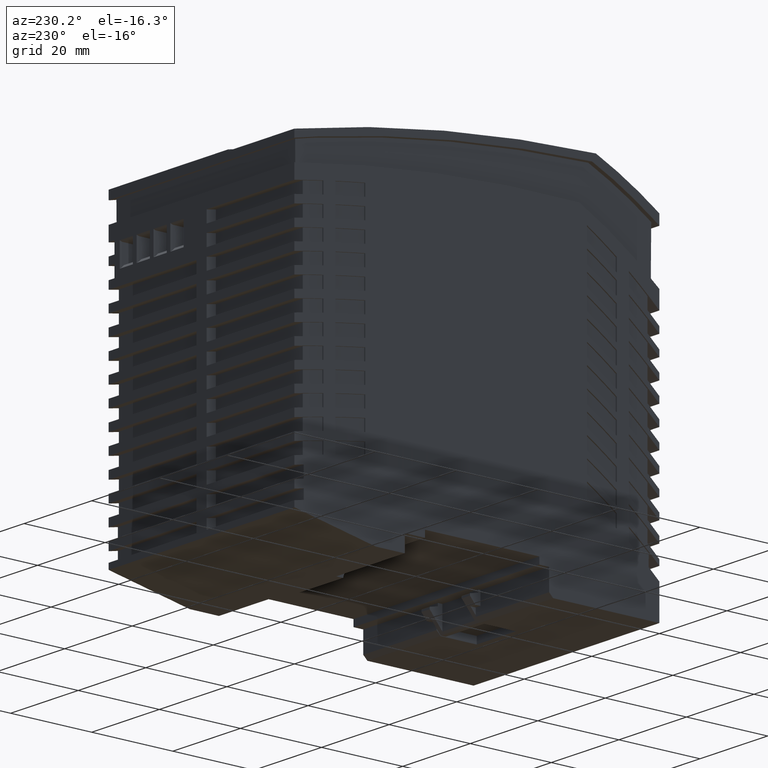
[diagram: clean part render]
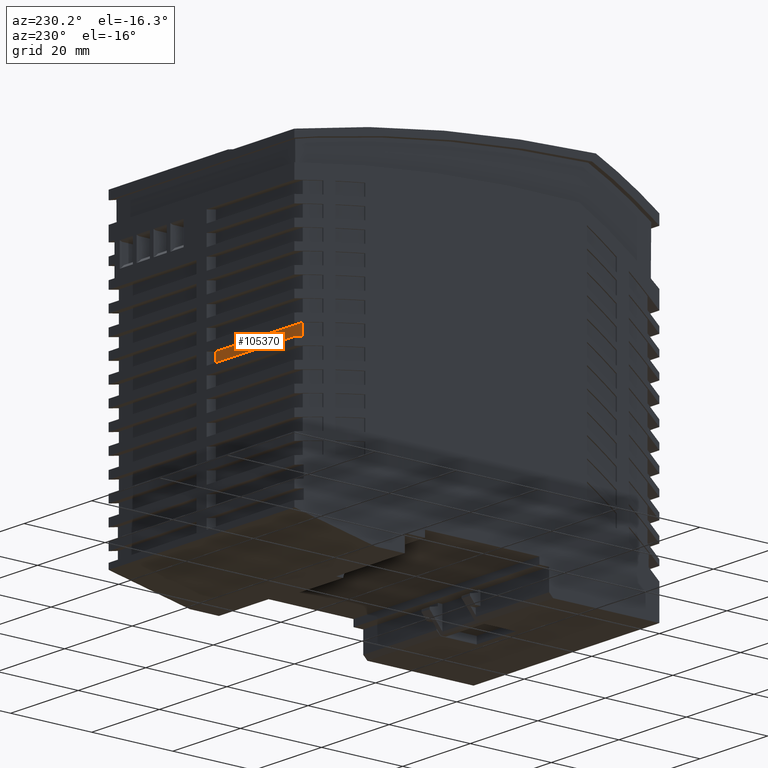
[diagram: same view with one face highlighted and labeled with its STEP entity id]
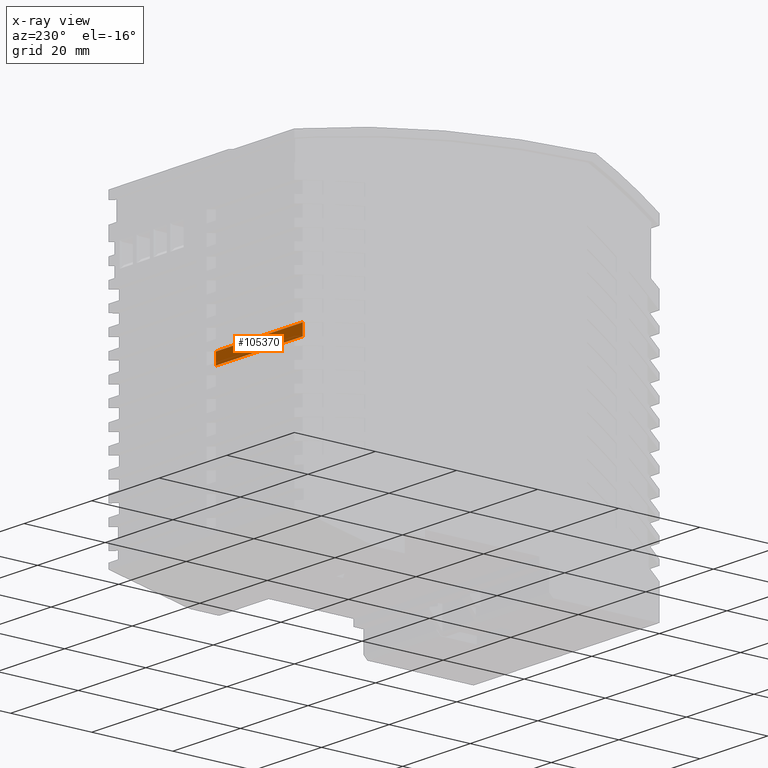
[diagram: x-ray of the same camera — body ghosted, the highlighted face saturated]
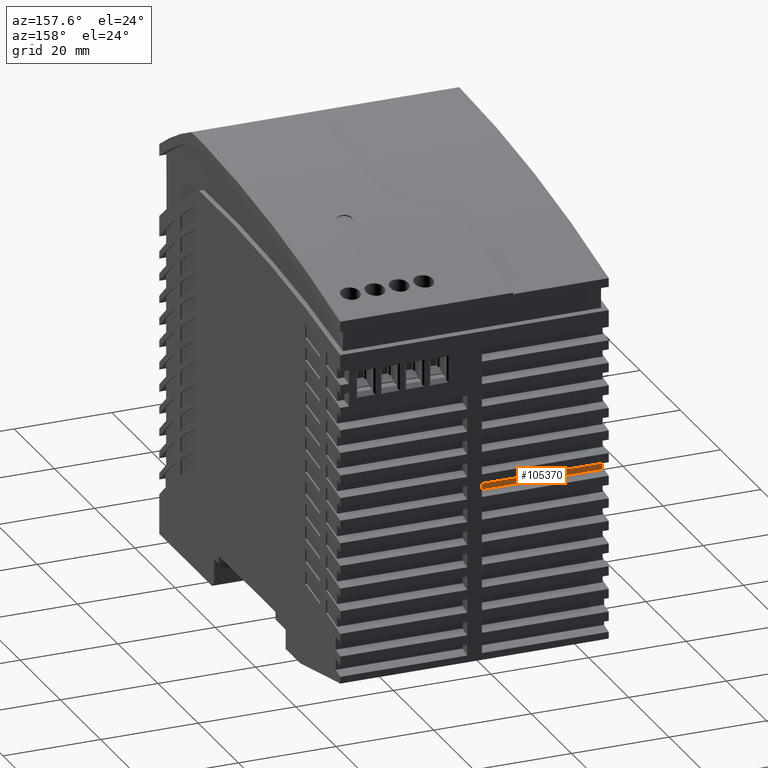
[diagram: same view with one face highlighted and labeled with its STEP entity id]
A machine part, auxiliary view. The second image highlights one B-rep face of the part: STEP entity #105370.
The next image is the same camera in x-ray: the body ghosted, the highlighted face saturated — about 0% of this face is hidden behind the body in this view.
A second angle (auxiliary view) of the same face is appended — the face is thin or edge-on in the first view.
In plain terms, the highlighted planar face has unit normal (0, -1, 0).
Its self-contained STEP definition (entity closure, byte-faithful):
#77420=CARTESIAN_POINT('',(42.6984763926291,0.,-53.7));
#77430=DIRECTION('',(0.,1.,0.));
#77440=VECTOR('',#77430,1.);
#77450=LINE('',#77420,#77440);
#77460=CARTESIAN_POINT('',(42.6984763926292,40.2458026137002,-53.7));
#77470=VERTEX_POINT('',#77460);
#77480=CARTESIAN_POINT('',(42.6984763926278,43.0414436006604,-53.7));
#77490=VERTEX_POINT('',#77480);
#77500=EDGE_CURVE('',#77470,#77490,#77450,.T.);
#78210=CARTESIAN_POINT('',(42.6984763926291,43.0414436006601,-28.));
#78220=DIRECTION('',(0.,0.,-1.));
#78230=VECTOR('',#78220,1.);
#78240=LINE('',#78210,#78230);
#78250=CARTESIAN_POINT('',(42.6984763926278,43.0414436006604,-28.));
#78260=VERTEX_POINT('',#78250);
#78270=EDGE_CURVE('',#78260,#77490,#78240,.T.);
#79070=CARTESIAN_POINT('',(42.6984763926292,40.2458026137002,-28.));
#79080=VERTEX_POINT('',#79070);
#79110=CARTESIAN_POINT('',(42.6984763926292,40.2458026137001,-28.));
#79120=DIRECTION('',(0.,0.,-1.));
#79130=VECTOR('',#79120,1.);
#79140=LINE('',#79110,#79130);
#79150=EDGE_CURVE('',#79080,#77470,#79140,.T.);
#104850=CARTESIAN_POINT('',(42.6984763926292,90.0290722762113,-28.));
#104860=DIRECTION('',(0.,-1.,0.));
#104870=VECTOR('',#104860,1.);
#104880=LINE('',#104850,#104870);
#104890=EDGE_CURVE('',#78260,#79080,#104880,.T.);
#105260=CARTESIAN_POINT('',(42.6984763926291,43.0414436006601,-28.));
#105270=DIRECTION('',(-1.,0.,0.));
#105280=DIRECTION('',(0.,-1.,0.));
#105290=AXIS2_PLACEMENT_3D('',#105260,#105270,#105280);
#105300=PLANE('',#105290);
#105310=ORIENTED_EDGE('',*,*,#79150,.T.);
#105320=ORIENTED_EDGE('',*,*,#104890,.T.);
#105330=ORIENTED_EDGE('',*,*,#78270,.F.);
#105340=ORIENTED_EDGE('',*,*,#77500,.T.);
#105350=EDGE_LOOP('',(#105340,#105330,#105320,#105310));
#105360=FACE_OUTER_BOUND('',#105350,.T.);
#105370=ADVANCED_FACE('',(#105360),#105300,.F.);